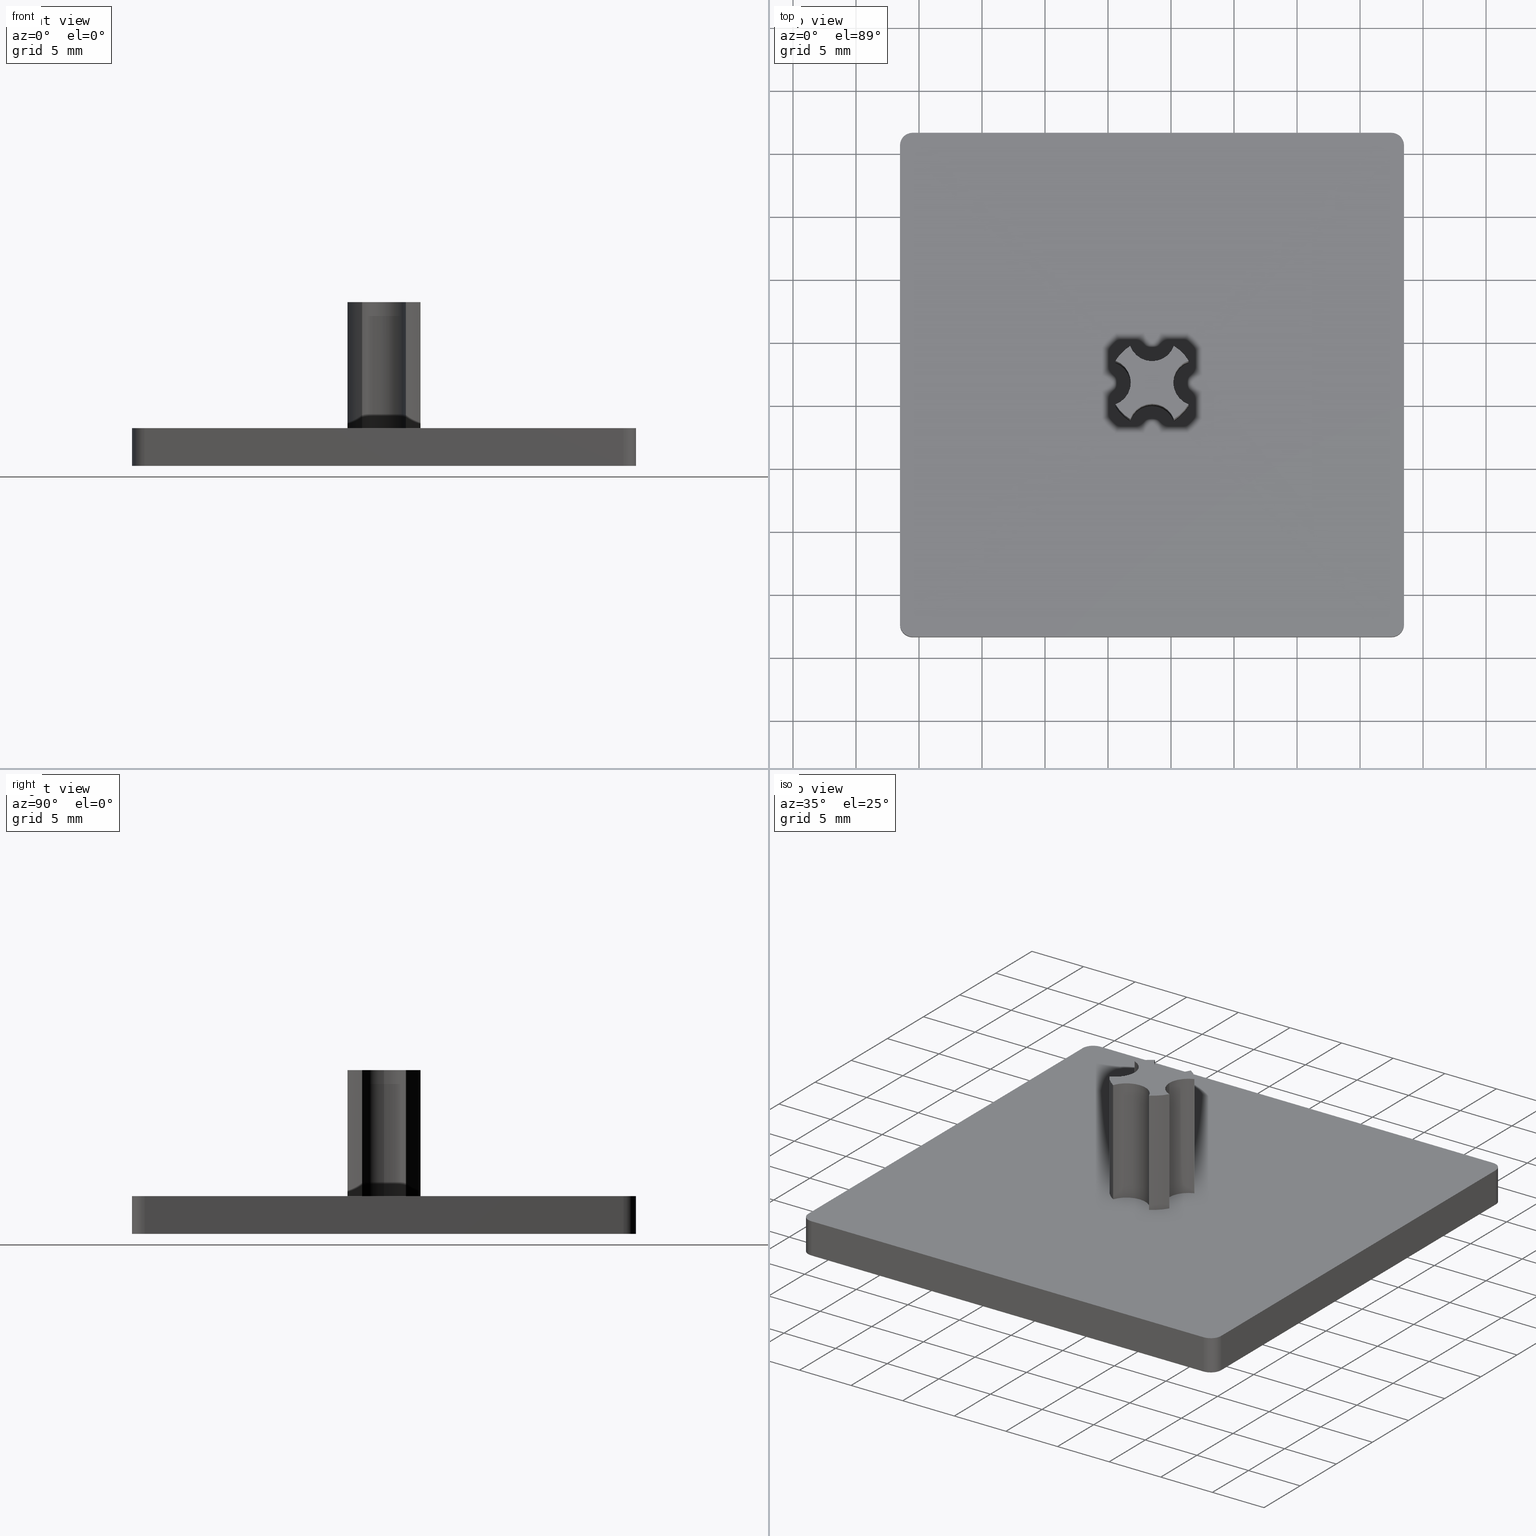
[diagram: canonical four-view strip — front | top / right | iso, engineering-drawing reading convention]
A machine part, canonical four-view strip (front | top / right | iso — engineering-drawing reading convention). The complete STEP part file that produces these views, byte-faithful:
ISO-10303-21;
HEADER;
/****************************************************************
 * Generated by software with PDE/Lib inside                    *
 * PDElib Version v4.4, created Mon 02/23/2004                  *
 * International Technegroup Inc. (www.iti-oh.com)              *
 ****************************************************************/
FILE_DESCRIPTION(('STEP AP203'),'2;1');
FILE_NAME('18.003.00.stp','2011-02-14T08:52:45',(''),(''),'2009.3.110','THINKDESIGN','');
FILE_SCHEMA(('CONFIG_CONTROL_DESIGN'));
ENDSEC;
DATA;
#2=CARTESIAN_POINT('',(-22.972161560216634,-8.350442477875610,13.000000010000001));
#3=DIRECTION('',(0.0,0.0,-1.0));
#4=DIRECTION('',(0.820773029339414,-0.571254439202884,0.0));
#5=AXIS2_PLACEMENT_3D('',#2,#3,#4);
#6=CYLINDRICAL_SURFACE('',#5,1.850000000000001);
#7=CARTESIAN_POINT('',(-24.822161560216632,-8.350442477875610,13.0));
#8=VERTEX_POINT('',#7);
#9=CARTESIAN_POINT('',(-23.614734513273326,-6.615622602499498,13.0));
#10=VERTEX_POINT('',#9);
#11=CARTESIAN_POINT('',(-22.972161560216630,-8.350442477875610,13.0));
#12=DIRECTION('',(0.0,0.0,-1.0));
#13=DIRECTION('',(0.0,1.0,0.0));
#14=AXIS2_PLACEMENT_3D('',#11,#12,#13);
#15=CIRCLE('',#14,1.850000000000001);
#16=EDGE_CURVE('',#8,#10,#15,.T.);
#17=ORIENTED_EDGE('',*,*,#16,.F.);
#18=CARTESIAN_POINT('',(-24.822161560216632,-8.350442477875610,3.0));
#19=VERTEX_POINT('',#18);
#20=CARTESIAN_POINT('',(-24.822161560216632,-8.350442477875610,13.0));
#21=DIRECTION('',(0.0,0.0,-1.0));
#22=VECTOR('',#21,10.0);
#23=LINE('',#20,#22);
#24=EDGE_CURVE('',#8,#19,#23,.T.);
#25=ORIENTED_EDGE('',*,*,#24,.T.);
#26=CARTESIAN_POINT('',(-23.614734513273326,-6.615622602499498,3.0));
#27=VERTEX_POINT('',#26);
#28=CARTESIAN_POINT('',(-22.972161560216630,-8.350442477875610,3.0));
#29=DIRECTION('',(0.0,0.0,-1.0));
#30=DIRECTION('',(0.0,1.0,0.0));
#31=AXIS2_PLACEMENT_3D('',#28,#29,#30);
#32=CIRCLE('',#31,1.850000000000001);
#33=EDGE_CURVE('',#19,#27,#32,.T.);
#34=ORIENTED_EDGE('',*,*,#33,.T.);
#35=CARTESIAN_POINT('',(-23.614734513273326,-6.615622602499498,13.0));
#36=DIRECTION('',(0.0,0.0,-1.0));
#37=VECTOR('',#36,10.0);
#38=LINE('',#35,#37);
#39=EDGE_CURVE('',#10,#27,#38,.T.);
#40=ORIENTED_EDGE('',*,*,#39,.F.);
#41=EDGE_LOOP('',(#17,#25,#34,#40));
#42=FACE_OUTER_BOUND('',#41,.T.);
#43=ADVANCED_FACE('',(#42),#6,.F.);
#44=CARTESIAN_POINT('',(-46.509734513273330,-29.250442477875609,-0.150000000000000));
#45=DIRECTION('',(1.0,0.0,0.0));
#46=DIRECTION('',(0.0,1.0,0.0));
#47=AXIS2_PLACEMENT_3D('',#44,#45,#46);
#48=PLANE('',#47);
#49=CARTESIAN_POINT('',(-46.509734513273330,10.649557522124383,3.0));
#50=VERTEX_POINT('',#49);
#51=CARTESIAN_POINT('',(-46.509734513273330,-27.350442477875610,3.0));
#52=VERTEX_POINT('',#51);
#53=CARTESIAN_POINT('',(-46.509734513273330,10.649557522124383,3.0));
#54=DIRECTION('',(0.0,-1.0,0.0));
#55=VECTOR('',#54,37.999999999999993);
#56=LINE('',#53,#55);
#57=EDGE_CURVE('',#50,#52,#56,.T.);
#58=ORIENTED_EDGE('',*,*,#57,.F.);
#59=CARTESIAN_POINT('',(-46.509734513273330,10.649557522124383,0.0));
#60=VERTEX_POINT('',#59);
#61=CARTESIAN_POINT('',(-46.509734513273330,10.649557522124383,3.0));
#62=DIRECTION('',(0.0,0.0,-1.0));
#63=VECTOR('',#62,3.0);
#64=LINE('',#61,#63);
#65=EDGE_CURVE('',#50,#60,#64,.T.);
#66=ORIENTED_EDGE('',*,*,#65,.T.);
#67=CARTESIAN_POINT('',(-46.509734513273330,-27.350442477875610,0.0));
#68=VERTEX_POINT('',#67);
#69=CARTESIAN_POINT('',(-46.509734513273330,10.649557522124383,0.0));
#70=DIRECTION('',(0.0,-1.0,0.0));
#71=VECTOR('',#70,37.999999999999993);
#72=LINE('',#69,#71);
#73=EDGE_CURVE('',#60,#68,#72,.T.);
#74=ORIENTED_EDGE('',*,*,#73,.T.);
#75=CARTESIAN_POINT('',(-46.509734513273330,-27.350442477875610,0.0));
#76=DIRECTION('',(0.0,0.0,1.0));
#77=VECTOR('',#76,3.0);
#78=LINE('',#75,#77);
#79=EDGE_CURVE('',#68,#52,#78,.T.);
#80=ORIENTED_EDGE('',*,*,#79,.T.);
#81=EDGE_LOOP('',(#58,#66,#74,#80));
#82=FACE_OUTER_BOUND('',#81,.T.);
#83=ADVANCED_FACE('',(#82),#48,.F.);
#84=CARTESIAN_POINT('',(-47.409734513273300,-28.350442477875610,-0.150000000000000));
#85=DIRECTION('',(0.0,1.0,0.0));
#86=DIRECTION('',(0.0,0.0,1.0));
#87=AXIS2_PLACEMENT_3D('',#84,#85,#86);
#88=PLANE('',#87);
#89=CARTESIAN_POINT('',(-45.509734513273301,-28.350442477875610,0.0));
#90=VERTEX_POINT('',#89);
#91=CARTESIAN_POINT('',(-7.509734513273324,-28.350442477875610,0.0));
#92=VERTEX_POINT('',#91);
#93=CARTESIAN_POINT('',(-45.509734513273301,-28.350442477875610,0.0));
#94=DIRECTION('',(1.0,0.0,0.0));
#95=VECTOR('',#94,37.999999999999979);
#96=LINE('',#93,#95);
#97=EDGE_CURVE('',#90,#92,#96,.T.);
#98=ORIENTED_EDGE('',*,*,#97,.T.);
#99=CARTESIAN_POINT('',(-7.509734513273324,-28.350442477875610,3.0));
#100=VERTEX_POINT('',#99);
#101=CARTESIAN_POINT('',(-7.509734513273324,-28.350442477875610,0.0));
#102=DIRECTION('',(0.0,0.0,1.0));
#103=VECTOR('',#102,3.0);
#104=LINE('',#101,#103);
#105=EDGE_CURVE('',#92,#100,#104,.T.);
#106=ORIENTED_EDGE('',*,*,#105,.T.);
#107=CARTESIAN_POINT('',(-45.509734513273301,-28.350442477875610,3.0));
#108=VERTEX_POINT('',#107);
#109=CARTESIAN_POINT('',(-45.509734513273301,-28.350442477875610,3.0));
#110=DIRECTION('',(1.0,0.0,0.0));
#111=VECTOR('',#110,37.999999999999979);
#112=LINE('',#109,#111);
#113=EDGE_CURVE('',#108,#100,#112,.T.);
#114=ORIENTED_EDGE('',*,*,#113,.F.);
#115=CARTESIAN_POINT('',(-45.509734513273301,-28.350442477875610,3.0));
#116=DIRECTION('',(0.0,0.0,-1.0));
#117=VECTOR('',#116,3.0);
#118=LINE('',#115,#117);
#119=EDGE_CURVE('',#108,#90,#118,.T.);
#120=ORIENTED_EDGE('',*,*,#119,.T.);
#121=EDGE_LOOP('',(#98,#106,#114,#120));
#122=FACE_OUTER_BOUND('',#121,.T.);
#123=ADVANCED_FACE('',(#122),#88,.F.);
#124=CARTESIAN_POINT('',(-6.509734513273321,-29.250442477875609,-0.150000000000000));
#125=DIRECTION('',(-1.0,0.0,0.0));
#126=DIRECTION('',(0.0,0.0,1.0));
#127=AXIS2_PLACEMENT_3D('',#124,#125,#126);
#128=PLANE('',#127);
#129=CARTESIAN_POINT('',(-6.509734513273321,-27.350442477875610,3.0));
#130=VERTEX_POINT('',#129);
#131=CARTESIAN_POINT('',(-6.509734513273321,10.649557522124383,3.0));
#132=VERTEX_POINT('',#131);
#133=CARTESIAN_POINT('',(-6.509734513273321,-27.350442477875610,3.0));
#134=DIRECTION('',(0.0,1.0,0.0));
#135=VECTOR('',#134,37.999999999999993);
#136=LINE('',#133,#135);
#137=EDGE_CURVE('',#130,#132,#136,.T.);
#138=ORIENTED_EDGE('',*,*,#137,.F.);
#139=CARTESIAN_POINT('',(-6.509734513273321,-27.350442477875610,0.0));
#140=VERTEX_POINT('',#139);
#141=CARTESIAN_POINT('',(-6.509734513273321,-27.350442477875610,3.0));
#142=DIRECTION('',(0.0,0.0,-1.0));
#143=VECTOR('',#142,3.0);
#144=LINE('',#141,#143);
#145=EDGE_CURVE('',#130,#140,#144,.T.);
#146=ORIENTED_EDGE('',*,*,#145,.T.);
#147=CARTESIAN_POINT('',(-6.509734513273321,10.649557522124383,0.0));
#148=VERTEX_POINT('',#147);
#149=CARTESIAN_POINT('',(-6.509734513273321,-27.350442477875610,0.0));
#150=DIRECTION('',(0.0,1.0,0.0));
#151=VECTOR('',#150,37.999999999999993);
#152=LINE('',#149,#151);
#153=EDGE_CURVE('',#140,#148,#152,.T.);
#154=ORIENTED_EDGE('',*,*,#153,.T.);
#155=CARTESIAN_POINT('',(-6.509734513273321,10.649557522124383,0.0));
#156=DIRECTION('',(0.0,0.0,1.0));
#157=VECTOR('',#156,3.0);
#158=LINE('',#155,#157);
#159=EDGE_CURVE('',#148,#132,#158,.T.);
#160=ORIENTED_EDGE('',*,*,#159,.T.);
#161=EDGE_LOOP('',(#138,#146,#154,#160));
#162=FACE_OUTER_BOUND('',#161,.T.);
#163=ADVANCED_FACE('',(#162),#128,.F.);
#164=CARTESIAN_POINT('',(-47.409734513273328,11.649557522124383,3.150000000000000));
#165=DIRECTION('',(0.0,-1.0,0.0));
#166=DIRECTION('',(0.0,0.0,-1.0));
#167=AXIS2_PLACEMENT_3D('',#164,#165,#166);
#168=PLANE('',#167);
#169=CARTESIAN_POINT('',(-7.509734513273320,11.649557522124383,3.0));
#170=VERTEX_POINT('',#169);
#171=CARTESIAN_POINT('',(-45.509734513273330,11.649557522124383,3.0));
#172=VERTEX_POINT('',#171);
#173=CARTESIAN_POINT('',(-7.509734513273320,11.649557522124383,3.0));
#174=DIRECTION('',(-1.0,0.0,0.0));
#175=VECTOR('',#174,38.000000000000007);
#176=LINE('',#173,#175);
#177=EDGE_CURVE('',#170,#172,#176,.T.);
#178=ORIENTED_EDGE('',*,*,#177,.F.);
#179=CARTESIAN_POINT('',(-7.509734513273320,11.649557522124383,0.0));
#180=VERTEX_POINT('',#179);
#181=CARTESIAN_POINT('',(-7.509734513273320,11.649557522124383,3.0));
#182=DIRECTION('',(0.0,0.0,-1.0));
#183=VECTOR('',#182,3.0);
#184=LINE('',#181,#183);
#185=EDGE_CURVE('',#170,#180,#184,.T.);
#186=ORIENTED_EDGE('',*,*,#185,.T.);
#187=CARTESIAN_POINT('',(-45.509734513273330,11.649557522124383,0.0));
#188=VERTEX_POINT('',#187);
#189=CARTESIAN_POINT('',(-7.509734513273320,11.649557522124383,0.0));
#190=DIRECTION('',(-1.0,0.0,0.0));
#191=VECTOR('',#190,38.000000000000007);
#192=LINE('',#189,#191);
#193=EDGE_CURVE('',#180,#188,#192,.T.);
#194=ORIENTED_EDGE('',*,*,#193,.T.);
#195=CARTESIAN_POINT('',(-45.509734513273330,11.649557522124383,0.0));
#196=DIRECTION('',(0.0,0.0,1.0));
#197=VECTOR('',#196,3.0);
#198=LINE('',#195,#197);
#199=EDGE_CURVE('',#188,#172,#198,.T.);
#200=ORIENTED_EDGE('',*,*,#199,.T.);
#201=EDGE_LOOP('',(#178,#186,#194,#200));
#202=FACE_OUTER_BOUND('',#201,.T.);
#203=ADVANCED_FACE('',(#202),#168,.F.);
#204=CARTESIAN_POINT('',(-48.509734513273330,-30.350442477875610,3.0));
#205=DIRECTION('',(0.0,0.0,1.0));
#206=DIRECTION('',(1.0,0.0,0.0));
#207=AXIS2_PLACEMENT_3D('',#204,#205,#206);
#208=PLANE('',#207);
#209=ORIENTED_EDGE('',*,*,#113,.T.);
#210=CARTESIAN_POINT('',(-7.509734513273320,-27.350442477875610,3.0));
#211=DIRECTION('',(0.0,0.0,1.0));
#212=DIRECTION('',(1.0,0.0,0.0));
#213=AXIS2_PLACEMENT_3D('',#210,#211,#212);
#214=CIRCLE('',#213,1.0);
#215=EDGE_CURVE('',#100,#130,#214,.T.);
#216=ORIENTED_EDGE('',*,*,#215,.T.);
#217=ORIENTED_EDGE('',*,*,#137,.T.);
#218=CARTESIAN_POINT('',(-7.509734513273320,10.649557522124383,3.0));
#219=DIRECTION('',(0.0,0.0,1.0));
#220=DIRECTION('',(1.0,0.0,0.0));
#221=AXIS2_PLACEMENT_3D('',#218,#219,#220);
#222=CIRCLE('',#221,1.0);
#223=EDGE_CURVE('',#132,#170,#222,.T.);
#224=ORIENTED_EDGE('',*,*,#223,.T.);
#225=ORIENTED_EDGE('',*,*,#177,.T.);
#226=CARTESIAN_POINT('',(-45.509734513273330,10.649557522124383,3.0));
#227=DIRECTION('',(0.0,0.0,1.0));
#228=DIRECTION('',(1.0,0.0,0.0));
#229=AXIS2_PLACEMENT_3D('',#226,#227,#228);
#230=CIRCLE('',#229,1.000000000000001);
#231=EDGE_CURVE('',#172,#50,#230,.T.);
#232=ORIENTED_EDGE('',*,*,#231,.T.);
#233=ORIENTED_EDGE('',*,*,#57,.T.);
#234=CARTESIAN_POINT('',(-45.509734513273301,-27.350442477875610,3.0));
#235=DIRECTION('',(0.0,0.0,1.0));
#236=DIRECTION('',(1.0,0.0,0.0));
#237=AXIS2_PLACEMENT_3D('',#234,#235,#236);
#238=CIRCLE('',#237,1.000000000000001);
#239=EDGE_CURVE('',#52,#108,#238,.T.);
#240=ORIENTED_EDGE('',*,*,#239,.T.);
#241=EDGE_LOOP('',(#209,#216,#217,#224,#225,#232,#233,#240));
#242=FACE_OUTER_BOUND('',#241,.T.);
#243=CARTESIAN_POINT('',(-24.774914637897208,-5.455442477875609,3.0));
#244=VERTEX_POINT('',#243);
#245=CARTESIAN_POINT('',(-26.509734513273326,-8.350442477875610,3.0));
#246=DIRECTION('',(0.0,0.0,1.0));
#247=DIRECTION('',(0.0,1.0,0.0));
#248=AXIS2_PLACEMENT_3D('',#245,#246,#247);
#249=CIRCLE('',#248,3.374999999999998);
#250=EDGE_CURVE('',#27,#244,#249,.T.);
#251=ORIENTED_EDGE('',*,*,#250,.F.);
#252=ORIENTED_EDGE('',*,*,#33,.F.);
#253=CARTESIAN_POINT('',(-23.614734513273326,-10.085262353251728,3.0));
#254=VERTEX_POINT('',#253);
#255=CARTESIAN_POINT('',(-22.972161560216630,-8.350442477875610,3.0));
#256=DIRECTION('',(0.0,0.0,-1.0));
#257=DIRECTION('',(0.0,1.0,0.0));
#258=AXIS2_PLACEMENT_3D('',#255,#256,#257);
#259=CIRCLE('',#258,1.850000000000001);
#260=EDGE_CURVE('',#254,#19,#259,.T.);
#261=ORIENTED_EDGE('',*,*,#260,.F.);
#262=CARTESIAN_POINT('',(-24.774914637897208,-11.245442477875608,3.0));
#263=VERTEX_POINT('',#262);
#264=CARTESIAN_POINT('',(-26.509734513273326,-8.350442477875610,3.0));
#265=DIRECTION('',(0.0,0.0,1.0));
#266=DIRECTION('',(0.0,1.0,0.0));
#267=AXIS2_PLACEMENT_3D('',#264,#265,#266);
#268=CIRCLE('',#267,3.374999999999999);
#269=EDGE_CURVE('',#263,#254,#268,.T.);
#270=ORIENTED_EDGE('',*,*,#269,.F.);
#271=CARTESIAN_POINT('',(-28.244554388649441,-11.245442477875613,3.0));
#272=VERTEX_POINT('',#271);
#273=CARTESIAN_POINT('',(-26.509734513273326,-11.888015430932322,3.0));
#274=DIRECTION('',(0.0,0.0,-1.0));
#275=DIRECTION('',(0.0,-1.0,0.0));
#276=AXIS2_PLACEMENT_3D('',#273,#274,#275);
#277=CIRCLE('',#276,1.850000000000004);
#278=EDGE_CURVE('',#272,#263,#277,.T.);
#279=ORIENTED_EDGE('',*,*,#278,.F.);
#280=CARTESIAN_POINT('',(-29.404734522686766,-10.085262337542920,3.0));
#281=VERTEX_POINT('',#280);
#282=CARTESIAN_POINT('',(-26.509734513273326,-8.350442477875610,3.0));
#283=DIRECTION('',(0.0,0.0,1.0));
#284=DIRECTION('',(0.0,1.0,0.0));
#285=AXIS2_PLACEMENT_3D('',#282,#283,#284);
#286=CIRCLE('',#285,3.375000000000001);
#287=EDGE_CURVE('',#281,#272,#286,.T.);
#288=ORIENTED_EDGE('',*,*,#287,.F.);
#289=CARTESIAN_POINT('',(-29.404734522686766,-6.615622618208302,3.0));
#290=VERTEX_POINT('',#289);
#291=CARTESIAN_POINT('',(-30.047307518154145,-8.350442477875610,3.0));
#292=DIRECTION('',(0.0,0.0,-1.0));
#293=DIRECTION('',(0.0,1.0,0.0));
#294=AXIS2_PLACEMENT_3D('',#291,#292,#293);
#295=CIRCLE('',#294,1.850000000000003);
#296=EDGE_CURVE('',#290,#281,#295,.T.);
#297=ORIENTED_EDGE('',*,*,#296,.F.);
#298=CARTESIAN_POINT('',(-28.244554388649441,-5.455442477875613,3.0));
#299=VERTEX_POINT('',#298);
#300=CARTESIAN_POINT('',(-26.509734513273326,-8.350442477875610,3.0));
#301=DIRECTION('',(0.0,0.0,1.0));
#302=DIRECTION('',(0.0,1.0,0.0));
#303=AXIS2_PLACEMENT_3D('',#300,#301,#302);
#304=CIRCLE('',#303,3.374999999999999);
#305=EDGE_CURVE('',#299,#290,#304,.T.);
#306=ORIENTED_EDGE('',*,*,#305,.F.);
#307=CARTESIAN_POINT('',(-26.509734513273326,-4.812869524818913,3.0));
#308=DIRECTION('',(0.0,0.0,-1.0));
#309=DIRECTION('',(0.0,1.0,0.0));
#310=AXIS2_PLACEMENT_3D('',#307,#308,#309);
#311=CIRCLE('',#310,1.850000000000000);
#312=EDGE_CURVE('',#244,#299,#311,.T.);
#313=ORIENTED_EDGE('',*,*,#312,.F.);
#314=EDGE_LOOP('',(#251,#252,#261,#270,#279,#288,#297,#306,#313));
#315=FACE_BOUND('',#314,.T.);
#316=ADVANCED_FACE('',(#242,#315),#208,.T.);
#317=CARTESIAN_POINT('',(-48.509734513273330,-30.350442477875610,0.0));
#318=DIRECTION('',(0.0,0.0,1.0));
#319=DIRECTION('',(1.0,0.0,0.0));
#320=AXIS2_PLACEMENT_3D('',#317,#318,#319);
#321=PLANE('',#320);
#322=ORIENTED_EDGE('',*,*,#153,.F.);
#323=CARTESIAN_POINT('',(-7.509734513273320,-27.350442477875610,0.0));
#324=DIRECTION('',(0.0,0.0,-1.0));
#325=DIRECTION('',(1.0,0.0,0.0));
#326=AXIS2_PLACEMENT_3D('',#323,#324,#325);
#327=CIRCLE('',#326,1.0);
#328=EDGE_CURVE('',#140,#92,#327,.T.);
#329=ORIENTED_EDGE('',*,*,#328,.T.);
#330=ORIENTED_EDGE('',*,*,#97,.F.);
#331=CARTESIAN_POINT('',(-45.509734513273301,-27.350442477875610,0.0));
#332=DIRECTION('',(0.0,0.0,-1.0));
#333=DIRECTION('',(1.0,0.0,0.0));
#334=AXIS2_PLACEMENT_3D('',#331,#332,#333);
#335=CIRCLE('',#334,1.000000000000001);
#336=EDGE_CURVE('',#90,#68,#335,.T.);
#337=ORIENTED_EDGE('',*,*,#336,.T.);
#338=ORIENTED_EDGE('',*,*,#73,.F.);
#339=CARTESIAN_POINT('',(-45.509734513273330,10.649557522124383,0.0));
#340=DIRECTION('',(0.0,0.0,-1.0));
#341=DIRECTION('',(1.0,0.0,0.0));
#342=AXIS2_PLACEMENT_3D('',#339,#340,#341);
#343=CIRCLE('',#342,1.000000000000001);
#344=EDGE_CURVE('',#60,#188,#343,.T.);
#345=ORIENTED_EDGE('',*,*,#344,.T.);
#346=ORIENTED_EDGE('',*,*,#193,.F.);
#347=CARTESIAN_POINT('',(-7.509734513273320,10.649557522124383,0.0));
#348=DIRECTION('',(0.0,0.0,-1.0));
#349=DIRECTION('',(1.0,0.0,0.0));
#350=AXIS2_PLACEMENT_3D('',#347,#348,#349);
#351=CIRCLE('',#350,1.0);
#352=EDGE_CURVE('',#180,#148,#351,.T.);
#353=ORIENTED_EDGE('',*,*,#352,.T.);
#354=EDGE_LOOP('',(#322,#329,#330,#337,#338,#345,#346,#353));
#355=FACE_OUTER_BOUND('',#354,.T.);
#356=ADVANCED_FACE('',(#355),#321,.F.);
#357=CARTESIAN_POINT('',(-45.509734513273301,-27.350442477875603,3.000000010000000));
#358=DIRECTION('',(0.0,0.0,-1.0));
#359=DIRECTION('',(0.707106781186547,0.707106781186548,0.0));
#360=AXIS2_PLACEMENT_3D('',#357,#358,#359);
#361=CYLINDRICAL_SURFACE('',#360,1.000000000000001);
#362=ORIENTED_EDGE('',*,*,#239,.F.);
#363=ORIENTED_EDGE('',*,*,#79,.F.);
#364=ORIENTED_EDGE('',*,*,#336,.F.);
#365=ORIENTED_EDGE('',*,*,#119,.F.);
#366=EDGE_LOOP('',(#362,#363,#364,#365));
#367=FACE_OUTER_BOUND('',#366,.T.);
#368=ADVANCED_FACE('',(#367),#361,.T.);
#369=CARTESIAN_POINT('',(-45.509734513273330,10.649557522124383,3.000000010000000));
#370=DIRECTION('',(0.0,0.0,-1.0));
#371=DIRECTION('',(0.707106781186547,-0.707106781186548,0.0));
#372=AXIS2_PLACEMENT_3D('',#369,#370,#371);
#373=CYLINDRICAL_SURFACE('',#372,1.000000000000001);
#374=ORIENTED_EDGE('',*,*,#231,.F.);
#375=ORIENTED_EDGE('',*,*,#199,.F.);
#376=ORIENTED_EDGE('',*,*,#344,.F.);
#377=ORIENTED_EDGE('',*,*,#65,.F.);
#378=EDGE_LOOP('',(#374,#375,#376,#377));
#379=FACE_OUTER_BOUND('',#378,.T.);
#380=ADVANCED_FACE('',(#379),#373,.T.);
#381=CARTESIAN_POINT('',(-7.509734513273320,10.649557522124383,3.000000010000000));
#382=DIRECTION('',(0.0,0.0,-1.0));
#383=DIRECTION('',(-1.0,0.0,0.0));
#384=AXIS2_PLACEMENT_3D('',#381,#382,#383);
#385=CYLINDRICAL_SURFACE('',#384,1.0);
#386=ORIENTED_EDGE('',*,*,#223,.F.);
#387=ORIENTED_EDGE('',*,*,#159,.F.);
#388=ORIENTED_EDGE('',*,*,#352,.F.);
#389=ORIENTED_EDGE('',*,*,#185,.F.);
#390=EDGE_LOOP('',(#386,#387,#388,#389));
#391=FACE_OUTER_BOUND('',#390,.T.);
#392=ADVANCED_FACE('',(#391),#385,.T.);
#393=CARTESIAN_POINT('',(-7.509734513273320,-27.350442477875610,3.000000010000000));
#394=DIRECTION('',(0.0,0.0,-1.0));
#395=DIRECTION('',(-1.0,0.0,0.0));
#396=AXIS2_PLACEMENT_3D('',#393,#394,#395);
#397=CYLINDRICAL_SURFACE('',#396,1.0);
#398=ORIENTED_EDGE('',*,*,#215,.F.);
#399=ORIENTED_EDGE('',*,*,#105,.F.);
#400=ORIENTED_EDGE('',*,*,#328,.F.);
#401=ORIENTED_EDGE('',*,*,#145,.F.);
#402=EDGE_LOOP('',(#398,#399,#400,#401));
#403=FACE_OUTER_BOUND('',#402,.T.);
#404=ADVANCED_FACE('',(#403),#397,.T.);
#405=CARTESIAN_POINT('',(-26.509734513273326,-8.350442477875610,13.000000010000001));
#406=DIRECTION('',(0.0,0.0,-1.0));
#407=DIRECTION('',(-1.0,0.0,0.0));
#408=AXIS2_PLACEMENT_3D('',#405,#406,#407);
#409=CYLINDRICAL_SURFACE('',#408,3.375000000000000);
#410=ORIENTED_EDGE('',*,*,#250,.T.);
#411=CARTESIAN_POINT('',(-24.774914637897208,-5.455442477875609,13.0));
#412=VERTEX_POINT('',#411);
#413=CARTESIAN_POINT('',(-24.774914637897208,-5.455442477875609,13.0));
#414=DIRECTION('',(0.0,0.0,-1.0));
#415=VECTOR('',#414,10.0);
#416=LINE('',#413,#415);
#417=EDGE_CURVE('',#412,#244,#416,.T.);
#418=ORIENTED_EDGE('',*,*,#417,.F.);
#419=CARTESIAN_POINT('',(-26.509734513273326,-8.350442477875610,13.0));
#420=DIRECTION('',(0.0,0.0,1.0));
#421=DIRECTION('',(0.0,1.0,0.0));
#422=AXIS2_PLACEMENT_3D('',#419,#420,#421);
#423=CIRCLE('',#422,3.374999999999998);
#424=EDGE_CURVE('',#10,#412,#423,.T.);
#425=ORIENTED_EDGE('',*,*,#424,.F.);
#426=ORIENTED_EDGE('',*,*,#39,.T.);
#427=EDGE_LOOP('',(#410,#418,#425,#426));
#428=FACE_OUTER_BOUND('',#427,.T.);
#429=ADVANCED_FACE('',(#428),#409,.T.);
#430=CARTESIAN_POINT('',(-26.509734513273326,-4.812869524818913,13.000000010000001));
#431=DIRECTION('',(0.0,0.0,-1.0));
#432=DIRECTION('',(-1.0,0.0,0.0));
#433=AXIS2_PLACEMENT_3D('',#430,#431,#432);
#434=CYLINDRICAL_SURFACE('',#433,1.850000000000001);
#435=ORIENTED_EDGE('',*,*,#312,.T.);
#436=CARTESIAN_POINT('',(-28.244554388649441,-5.455442477875613,13.0));
#437=VERTEX_POINT('',#436);
#438=CARTESIAN_POINT('',(-28.244554388649441,-5.455442477875613,13.0));
#439=DIRECTION('',(0.0,0.0,-1.0));
#440=VECTOR('',#439,10.0);
#441=LINE('',#438,#440);
#442=EDGE_CURVE('',#437,#299,#441,.T.);
#443=ORIENTED_EDGE('',*,*,#442,.F.);
#444=CARTESIAN_POINT('',(-26.509734513273326,-4.812869524818913,13.0));
#445=DIRECTION('',(0.0,0.0,-1.0));
#446=DIRECTION('',(0.0,1.0,0.0));
#447=AXIS2_PLACEMENT_3D('',#444,#445,#446);
#448=CIRCLE('',#447,1.850000000000000);
#449=EDGE_CURVE('',#412,#437,#448,.T.);
#450=ORIENTED_EDGE('',*,*,#449,.F.);
#451=ORIENTED_EDGE('',*,*,#417,.T.);
#452=EDGE_LOOP('',(#435,#443,#450,#451));
#453=FACE_OUTER_BOUND('',#452,.T.);
#454=ADVANCED_FACE('',(#453),#434,.F.);
#455=CARTESIAN_POINT('',(-26.509734513273326,-8.350442477875610,13.000000010000001));
#456=DIRECTION('',(0.0,0.0,-1.0));
#457=DIRECTION('',(-1.0,0.0,0.0));
#458=AXIS2_PLACEMENT_3D('',#455,#456,#457);
#459=CYLINDRICAL_SURFACE('',#458,3.375000000000000);
#460=ORIENTED_EDGE('',*,*,#305,.T.);
#461=CARTESIAN_POINT('',(-29.404734522686766,-6.615622618208302,13.0));
#462=VERTEX_POINT('',#461);
#463=CARTESIAN_POINT('',(-29.404734522686766,-6.615622618208302,13.0));
#464=DIRECTION('',(0.0,0.0,-1.0));
#465=VECTOR('',#464,10.0);
#466=LINE('',#463,#465);
#467=EDGE_CURVE('',#462,#290,#466,.T.);
#468=ORIENTED_EDGE('',*,*,#467,.F.);
#469=CARTESIAN_POINT('',(-26.509734513273326,-8.350442477875610,13.0));
#470=DIRECTION('',(0.0,0.0,1.0));
#471=DIRECTION('',(0.0,1.0,0.0));
#472=AXIS2_PLACEMENT_3D('',#469,#470,#471);
#473=CIRCLE('',#472,3.374999999999999);
#474=EDGE_CURVE('',#437,#462,#473,.T.);
#475=ORIENTED_EDGE('',*,*,#474,.F.);
#476=ORIENTED_EDGE('',*,*,#442,.T.);
#477=EDGE_LOOP('',(#460,#468,#475,#476));
#478=FACE_OUTER_BOUND('',#477,.T.);
#479=ADVANCED_FACE('',(#478),#459,.T.);
#480=CARTESIAN_POINT('',(-30.047307518154145,-8.350442477875610,13.000000010000001));
#481=DIRECTION('',(0.0,0.0,-1.0));
#482=DIRECTION('',(-1.0,0.0,0.0));
#483=AXIS2_PLACEMENT_3D('',#480,#481,#482);
#484=CYLINDRICAL_SURFACE('',#483,1.850000000000004);
#485=ORIENTED_EDGE('',*,*,#296,.T.);
#486=CARTESIAN_POINT('',(-29.404734522686766,-10.085262337542920,13.0));
#487=VERTEX_POINT('',#486);
#488=CARTESIAN_POINT('',(-29.404734522686766,-10.085262337542920,13.0));
#489=DIRECTION('',(0.0,0.0,-1.0));
#490=VECTOR('',#489,10.0);
#491=LINE('',#488,#490);
#492=EDGE_CURVE('',#487,#281,#491,.T.);
#493=ORIENTED_EDGE('',*,*,#492,.F.);
#494=CARTESIAN_POINT('',(-30.047307518154145,-8.350442477875610,13.0));
#495=DIRECTION('',(0.0,0.0,-1.0));
#496=DIRECTION('',(0.0,1.0,0.0));
#497=AXIS2_PLACEMENT_3D('',#494,#495,#496);
#498=CIRCLE('',#497,1.850000000000003);
#499=EDGE_CURVE('',#462,#487,#498,.T.);
#500=ORIENTED_EDGE('',*,*,#499,.F.);
#501=ORIENTED_EDGE('',*,*,#467,.T.);
#502=EDGE_LOOP('',(#485,#493,#500,#501));
#503=FACE_OUTER_BOUND('',#502,.T.);
#504=ADVANCED_FACE('',(#503),#484,.F.);
#505=CARTESIAN_POINT('',(-26.509734513273326,-8.350442477875610,13.000000010000001));
#506=DIRECTION('',(0.0,0.0,-1.0));
#507=DIRECTION('',(-1.0,0.0,0.0));
#508=AXIS2_PLACEMENT_3D('',#505,#506,#507);
#509=CYLINDRICAL_SURFACE('',#508,3.375000000000000);
#510=ORIENTED_EDGE('',*,*,#287,.T.);
#511=CARTESIAN_POINT('',(-28.244554388649441,-11.245442477875613,13.0));
#512=VERTEX_POINT('',#511);
#513=CARTESIAN_POINT('',(-28.244554388649441,-11.245442477875613,13.0));
#514=DIRECTION('',(0.0,0.0,-1.0));
#515=VECTOR('',#514,10.0);
#516=LINE('',#513,#515);
#517=EDGE_CURVE('',#512,#272,#516,.T.);
#518=ORIENTED_EDGE('',*,*,#517,.F.);
#519=CARTESIAN_POINT('',(-26.509734513273326,-8.350442477875610,13.0));
#520=DIRECTION('',(0.0,0.0,1.0));
#521=DIRECTION('',(0.0,1.0,0.0));
#522=AXIS2_PLACEMENT_3D('',#519,#520,#521);
#523=CIRCLE('',#522,3.375000000000001);
#524=EDGE_CURVE('',#487,#512,#523,.T.);
#525=ORIENTED_EDGE('',*,*,#524,.F.);
#526=ORIENTED_EDGE('',*,*,#492,.T.);
#527=EDGE_LOOP('',(#510,#518,#525,#526));
#528=FACE_OUTER_BOUND('',#527,.T.);
#529=ADVANCED_FACE('',(#528),#509,.T.);
#530=CARTESIAN_POINT('',(-26.509734513273326,-11.888015430932322,13.000000010000001));
#531=DIRECTION('',(0.0,0.0,-1.0));
#532=DIRECTION('',(-1.0,0.0,0.0));
#533=AXIS2_PLACEMENT_3D('',#530,#531,#532);
#534=CYLINDRICAL_SURFACE('',#533,1.850000000000004);
#535=ORIENTED_EDGE('',*,*,#278,.T.);
#536=CARTESIAN_POINT('',(-24.774914637897208,-11.245442477875608,13.0));
#537=VERTEX_POINT('',#536);
#538=CARTESIAN_POINT('',(-24.774914637897208,-11.245442477875608,13.0));
#539=DIRECTION('',(0.0,0.0,-1.0));
#540=VECTOR('',#539,10.0);
#541=LINE('',#538,#540);
#542=EDGE_CURVE('',#537,#263,#541,.T.);
#543=ORIENTED_EDGE('',*,*,#542,.F.);
#544=CARTESIAN_POINT('',(-26.509734513273326,-11.888015430932322,13.0));
#545=DIRECTION('',(0.0,0.0,-1.0));
#546=DIRECTION('',(0.0,-1.0,0.0));
#547=AXIS2_PLACEMENT_3D('',#544,#545,#546);
#548=CIRCLE('',#547,1.850000000000004);
#549=EDGE_CURVE('',#512,#537,#548,.T.);
#550=ORIENTED_EDGE('',*,*,#549,.F.);
#551=ORIENTED_EDGE('',*,*,#517,.T.);
#552=EDGE_LOOP('',(#535,#543,#550,#551));
#553=FACE_OUTER_BOUND('',#552,.T.);
#554=ADVANCED_FACE('',(#553),#534,.F.);
#555=CARTESIAN_POINT('',(-26.509734513273326,-8.350442477875610,13.000000010000001));
#556=DIRECTION('',(0.0,0.0,-1.0));
#557=DIRECTION('',(-1.0,0.0,0.0));
#558=AXIS2_PLACEMENT_3D('',#555,#556,#557);
#559=CYLINDRICAL_SURFACE('',#558,3.375000000000000);
#560=ORIENTED_EDGE('',*,*,#269,.T.);
#561=CARTESIAN_POINT('',(-23.614734513273326,-10.085262353251728,13.0));
#562=VERTEX_POINT('',#561);
#563=CARTESIAN_POINT('',(-23.614734513273326,-10.085262353251728,13.0));
#564=DIRECTION('',(0.0,0.0,-1.0));
#565=VECTOR('',#564,10.0);
#566=LINE('',#563,#565);
#567=EDGE_CURVE('',#562,#254,#566,.T.);
#568=ORIENTED_EDGE('',*,*,#567,.F.);
#569=CARTESIAN_POINT('',(-26.509734513273326,-8.350442477875610,13.0));
#570=DIRECTION('',(0.0,0.0,1.0));
#571=DIRECTION('',(0.0,1.0,0.0));
#572=AXIS2_PLACEMENT_3D('',#569,#570,#571);
#573=CIRCLE('',#572,3.374999999999999);
#574=EDGE_CURVE('',#537,#562,#573,.T.);
#575=ORIENTED_EDGE('',*,*,#574,.F.);
#576=ORIENTED_EDGE('',*,*,#542,.T.);
#577=EDGE_LOOP('',(#560,#568,#575,#576));
#578=FACE_OUTER_BOUND('',#577,.T.);
#579=ADVANCED_FACE('',(#578),#559,.T.);
#580=CARTESIAN_POINT('',(-22.972161560216627,-8.350442477875610,13.000000010000001));
#581=DIRECTION('',(0.0,0.0,-1.0));
#582=DIRECTION('',(0.820773029339414,0.571254439202884,0.0));
#583=AXIS2_PLACEMENT_3D('',#580,#581,#582);
#584=CYLINDRICAL_SURFACE('',#583,1.850000000000001);
#585=ORIENTED_EDGE('',*,*,#24,.F.);
#586=CARTESIAN_POINT('',(-22.972161560216630,-8.350442477875610,13.0));
#587=DIRECTION('',(0.0,0.0,-1.0));
#588=DIRECTION('',(0.0,1.0,0.0));
#589=AXIS2_PLACEMENT_3D('',#586,#587,#588);
#590=CIRCLE('',#589,1.850000000000001);
#591=EDGE_CURVE('',#562,#8,#590,.T.);
#592=ORIENTED_EDGE('',*,*,#591,.F.);
#593=ORIENTED_EDGE('',*,*,#567,.T.);
#594=ORIENTED_EDGE('',*,*,#260,.T.);
#595=EDGE_LOOP('',(#585,#592,#593,#594));
#596=FACE_OUTER_BOUND('',#595,.T.);
#597=ADVANCED_FACE('',(#596),#584,.F.);
#598=CARTESIAN_POINT('',(-29.694234523157448,-11.534942477875614,13.0));
#599=DIRECTION('',(0.0,0.0,1.0));
#600=DIRECTION('',(1.0,0.0,0.0));
#601=AXIS2_PLACEMENT_3D('',#598,#599,#600);
#602=PLANE('',#601);
#603=ORIENTED_EDGE('',*,*,#424,.T.);
#604=ORIENTED_EDGE('',*,*,#449,.T.);
#605=ORIENTED_EDGE('',*,*,#474,.T.);
#606=ORIENTED_EDGE('',*,*,#499,.T.);
#607=ORIENTED_EDGE('',*,*,#524,.T.);
#608=ORIENTED_EDGE('',*,*,#549,.T.);
#609=ORIENTED_EDGE('',*,*,#574,.T.);
#610=ORIENTED_EDGE('',*,*,#591,.T.);
#611=ORIENTED_EDGE('',*,*,#16,.T.);
#612=EDGE_LOOP('',(#603,#604,#605,#606,#607,#608,#609,#610,#611));
#613=FACE_OUTER_BOUND('',#612,.T.);
#614=ADVANCED_FACE('',(#613),#602,.T.);
#615=CLOSED_SHELL('',(#43,#83,#123,#163,#203,#316,#356,#368,#380,#392,#404,#429,#454,#479,#504,#529,#554,#579,#597,#614));
#616=MANIFOLD_SOLID_BREP('Importato1',#615);
#622=(NAMED_UNIT(*)PLANE_ANGLE_UNIT()SI_UNIT($,.RADIAN.));
#623=DIMENSIONAL_EXPONENTS(0.0,0.0,0.0,0.0,0.0,0.0,0.0);
#624=PLANE_ANGLE_MEASURE_WITH_UNIT(PLANE_ANGLE_MEASURE(0.017453292500000),#622);
#628=(CONVERSION_BASED_UNIT('DEGREE',#624)NAMED_UNIT(#623)PLANE_ANGLE_UNIT());
#632=(NAMED_UNIT(*)SI_UNIT($,.STERADIAN.)SOLID_ANGLE_UNIT());
#636=(LENGTH_UNIT()NAMED_UNIT(*)SI_UNIT(.MILLI.,.METRE.));
#638=UNCERTAINTY_MEASURE_WITH_UNIT(LENGTH_MEASURE(0.001000000000000),#636,'DISTANCE_ACCURACY_VALUE','');
#640=(GEOMETRIC_REPRESENTATION_CONTEXT(3)GLOBAL_UNCERTAINTY_ASSIGNED_CONTEXT((#638))GLOBAL_UNIT_ASSIGNED_CONTEXT((#628,#632,#636))REPRESENTATION_CONTEXT('thinkdesign','2009.3.110'));
#641=ADVANCED_BREP_SHAPE_REPRESENTATION('',(#616),#640);
#642=APPLICATION_CONTEXT('configuration controlled 3D designs of mechanical parts and assemblies');
#643=APPLICATION_PROTOCOL_DEFINITION('International Standard','config_control_design',1995,#642);
#644=MECHANICAL_CONTEXT('None',#642,'mechanical');
#645=PRODUCT('None','None','None',(#644));
#646=PRODUCT_RELATED_PRODUCT_CATEGORY('detail',$,(#645));
#647=PRODUCT_CATEGORY('part',$);
#648=PRODUCT_CATEGORY_RELATIONSHIP('None','None',#647,#646);
#649=PERSON('PERSON1','None','None',$,$,$);
#650=ORGANIZATION('','None','None');
#651=PERSON_AND_ORGANIZATION(#649,#650);
#652=PERSON_AND_ORGANIZATION_ROLE('design_owner');
#653=CC_DESIGN_PERSON_AND_ORGANIZATION_ASSIGNMENT(#651,#652,(#645));
#654=PRODUCT_DEFINITION_FORMATION_WITH_SPECIFIED_SOURCE('None','None',#645,.NOT_KNOWN.);
#655=PERSON('PERSON2','None','None',$,$,$);
#656=ORGANIZATION('','None','None');
#657=PERSON_AND_ORGANIZATION(#655,#656);
#658=PERSON_AND_ORGANIZATION_ROLE('creator');
#659=CC_DESIGN_PERSON_AND_ORGANIZATION_ASSIGNMENT(#657,#658,(#654));
#660=PERSON('PERSON3','None','None',$,$,$);
#661=ORGANIZATION('','None','None');
#662=PERSON_AND_ORGANIZATION(#660,#661);
#663=PERSON_AND_ORGANIZATION_ROLE('part_supplier');
#664=CC_DESIGN_PERSON_AND_ORGANIZATION_ASSIGNMENT(#662,#663,(#654));
#665=APPROVAL_STATUS('approved');
#666=APPROVAL(#665,'None');
#667=PERSON('PERSON4','None','None',$,$,$);
#668=ORGANIZATION('','None','None');
#669=PERSON_AND_ORGANIZATION(#667,#668);
#670=APPROVAL_ROLE('None');
#671=APPROVAL_PERSON_ORGANIZATION(#669,#666,#670);
#672=CALENDAR_DATE(2011,14,2);
#673=COORDINATED_UNIVERSAL_TIME_OFFSET(0,0,.AHEAD.);
#674=LOCAL_TIME(8,52,45.0,#673);
#675=DATE_AND_TIME(#672,#674);
#676=APPROVAL_DATE_TIME(#675,#666);
#677=CC_DESIGN_APPROVAL(#666,(#654));
#678=SECURITY_CLASSIFICATION_LEVEL('unclassified');
#679=SECURITY_CLASSIFICATION('None','None',#678);
#680=CC_DESIGN_SECURITY_CLASSIFICATION(#679,(#654));
#681=APPROVAL_STATUS('approved');
#682=APPROVAL(#681,'None');
#683=PERSON('PERSON5','None','None',$,$,$);
#684=ORGANIZATION('','None','None');
#685=PERSON_AND_ORGANIZATION(#683,#684);
#686=APPROVAL_ROLE('None');
#687=APPROVAL_PERSON_ORGANIZATION(#685,#682,#686);
#688=CALENDAR_DATE(2011,14,2);
#689=COORDINATED_UNIVERSAL_TIME_OFFSET(0,0,.AHEAD.);
#690=LOCAL_TIME(8,52,45.0,#689);
#691=DATE_AND_TIME(#688,#690);
#692=APPROVAL_DATE_TIME(#691,#682);
#693=CC_DESIGN_APPROVAL(#682,(#679));
#694=PERSON('PERSON6','None','None',$,$,$);
#695=ORGANIZATION('','None','None');
#696=PERSON_AND_ORGANIZATION(#694,#695);
#697=PERSON_AND_ORGANIZATION_ROLE('classification_officer');
#698=CC_DESIGN_PERSON_AND_ORGANIZATION_ASSIGNMENT(#696,#697,(#679));
#699=DATE_TIME_ROLE('classification_date');
#700=CALENDAR_DATE(2011,14,2);
#701=COORDINATED_UNIVERSAL_TIME_OFFSET(0,0,.AHEAD.);
#702=LOCAL_TIME(8,52,45.0,#701);
#703=DATE_AND_TIME(#700,#702);
#704=CC_DESIGN_DATE_AND_TIME_ASSIGNMENT(#703,#699,(#679));
#705=DESIGN_CONTEXT('part definition',#642,'design');
#706=DOCUMENT_TYPE('cad_filename');
#707=DOCUMENT('None','None','None',#706);
#708=PRODUCT_DEFINITION_WITH_ASSOCIATED_DOCUMENTS('None','None',#654,#705,(#707));
#709=PERSON('PERSON7','None','None',$,$,$);
#710=ORGANIZATION('','None','None');
#711=PERSON_AND_ORGANIZATION(#709,#710);
#712=PERSON_AND_ORGANIZATION_ROLE('creator');
#713=CC_DESIGN_PERSON_AND_ORGANIZATION_ASSIGNMENT(#711,#712,(#708));
#714=DATE_TIME_ROLE('creation_date');
#715=CALENDAR_DATE(2011,14,2);
#716=COORDINATED_UNIVERSAL_TIME_OFFSET(0,0,.AHEAD.);
#717=LOCAL_TIME(8,52,45.0,#716);
#718=DATE_AND_TIME(#715,#717);
#719=CC_DESIGN_DATE_AND_TIME_ASSIGNMENT(#718,#714,(#708));
#720=APPROVAL_STATUS('approved');
#721=APPROVAL(#720,'None');
#722=PERSON('PERSON8','None','None',$,$,$);
#723=ORGANIZATION('','None','None');
#724=PERSON_AND_ORGANIZATION(#722,#723);
#725=APPROVAL_ROLE('None');
#726=APPROVAL_PERSON_ORGANIZATION(#724,#721,#725);
#727=CALENDAR_DATE(2011,14,2);
#728=COORDINATED_UNIVERSAL_TIME_OFFSET(0,0,.AHEAD.);
#729=LOCAL_TIME(8,52,45.0,#728);
#730=DATE_AND_TIME(#727,#729);
#731=APPROVAL_DATE_TIME(#730,#721);
#732=CC_DESIGN_APPROVAL(#721,(#708));
#733=PRODUCT_DEFINITION_SHAPE('None','None',#708);
#734=SHAPE_DEFINITION_REPRESENTATION(#733,#641);
#735=DIMENSIONAL_EXPONENTS(0.0,0.0,0.0,0.0,0.0,0.0,0.0);
#736=DIMENSIONAL_EXPONENTS(1.0,0.0,0.0,0.0,0.0,0.0,0.0);
ENDSEC;
END-ISO-10303-21;
